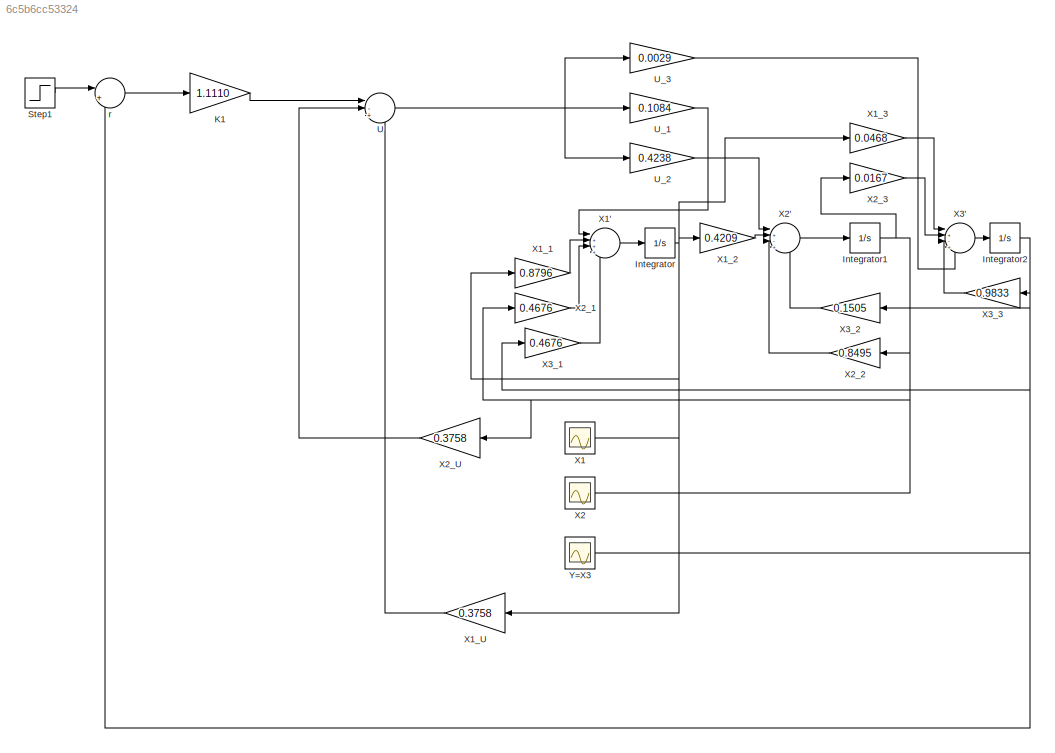
MODEL slx_6c5b6cc53324
KIND model
CONFIG AbsTol = auto
CONFIG EnableMultiTasking = off
CONFIG FixedStep = auto
CONFIG MaxStep = auto
CONFIG MinStep = auto
CONFIG RelTol = 1e-3
CONFIG SampleTimeConstraint = Unconstrained
CONFIG SolverName = VariableStepAuto
CONFIG StartTime = 0.0
CONFIG StopTime = 10.0
BLOCK [Integrator] Integrator
  Ports = [1, 1]
BLOCK [Integrator] Integrator1
  Ports = [1, 1]
BLOCK [Integrator] Integrator2
  Ports = [1, 1]
BLOCK [Gain] K1
  Gain = 1.1110
BLOCK [Step] Step1
  SampleTime = 0
BLOCK [Sum] U
  Inputs = |-+-
  NameLocation = top
  Ports = [3, 1]
BLOCK [Gain] U_1
  Gain = 0.1084
BLOCK [Gain] U_2
  Gain = 0.4238
BLOCK [Gain] U_3
  Gain = 0.0029
BLOCK [Scope] X1
  Floating = off
  NameLocation = top
  NumInputPorts = 1
  Ports = [1]
  ScopeSpecificationString = Simulink.scopes.TimeScopeBlockCfg('CurrentConfiguration', extmgr.ConfigurationSet(extmgr.Configuration('Core','General UI',true),extmgr.Configuration('Core','Source UI',true),extmgr.Configuration('Sources','WiredSimulink',true,'DataLoggingVariableName','ScopeData1'),extmgr.Configuration('Visuals','Time Domain',true,'SerializedDisplays',{struct('MinYLimReal','-161.87277','MaxYLimReal','1135.70337',...<+1387ch>
BLOCK [Sum] X1'
  Inputs = |+++-
  NameLocation = top
  Ports = [4, 1]
BLOCK [Gain] X1_1
  Gain = 0.8796
BLOCK [Gain] X1_2
  Gain = 0.4209
BLOCK [Gain] X1_3
  Gain = 0.0468
BLOCK [Gain] X1_U
  Gain = 0.3758
BLOCK [Scope] X2
  Floating = off
  NameLocation = top
  NumInputPorts = 1
  Ports = [1]
  ScopeSpecificationString = Simulink.scopes.TimeScopeBlockCfg('CurrentConfiguration', extmgr.ConfigurationSet(extmgr.Configuration('Core','General UI',true),extmgr.Configuration('Core','Source UI',true),extmgr.Configuration('Sources','WiredSimulink',true,'DataLoggingVariableName','ScopeData2'),extmgr.Configuration('Visuals','Time Domain',true,'SerializedDisplays',{struct('MinYLimReal','-253.51653','MaxYLimReal','292.78049','...<+1384ch>
BLOCK [Sum] X2'
  Inputs = |+-++
  NameLocation = top
  Ports = [4, 1]
BLOCK [Gain] X2_1
  Gain = 0.4676
BLOCK [Gain] X2_2
  Gain = 0.8495
BLOCK [Gain] X2_3
  Gain = 0.0167
BLOCK [Gain] X2_U
  Gain = 0.3758
BLOCK [Sum] X3'
  Inputs = |+-++
  NameLocation = top
  Ports = [4, 1]
BLOCK [Gain] X3_1
  Gain = 0.4676
BLOCK [Gain] X3_2
  Gain = 0.1505
BLOCK [Gain] X3_3
  Gain = 0.9833
BLOCK [Scope] Y=X3
  Floating = off
  NameLocation = top
  NumInputPorts = 1
  Ports = [1]
  ScopeSpecificationString = Simulink.scopes.TimeScopeBlockCfg('CurrentConfiguration', extmgr.ConfigurationSet(extmgr.Configuration('Core','General UI',true),extmgr.Configuration('Core','Source UI',true),extmgr.Configuration('Sources','WiredSimulink',true),extmgr.Configuration('Visuals','Time Domain',true,'SerializedDisplays',{struct('MinYLimReal','-437.56974','MaxYLimReal','48.61886','YLabelReal','','MinYLimMag',' 0.00000','...<+1343ch>
BLOCK [Sum] r
  Inputs = |+-
  NameLocation = top
  Ports = [2, 1]
NET Integrator1:1 -> X2:1, X2_1:1, X2_2:1, X2_3:1, X2_U:1
NET Integrator2:1 -> X3_1:1, X3_2:1, X3_3:1, Y=X3:1, r:2
NET Integrator:1 -> X1:1, X1_1:1, X1_2:1, X1_3:1, X1_U:1
LINE K1:1 -> U:1
LINE Step1:1 -> r:1
NET U:1 -> U_1:1, U_2:1, U_3:1
LINE U_1:1 -> X1':1
LINE U_2:1 -> X2':1
LINE U_3:1 -> X3':4
LINE X1':1 -> Integrator:1
LINE X1_1:1 -> X1':2
LINE X1_2:1 -> X2':2
LINE X1_3:1 -> X3':1
LINE X1_U:1 -> U:3
LINE X2':1 -> Integrator1:1
LINE X2_1:1 -> X1':3
LINE X2_2:1 -> X2':3
LINE X2_3:1 -> X3':2
LINE X2_U:1 -> U:2
LINE X3':1 -> Integrator2:1
LINE X3_1:1 -> X1':4
LINE X3_2:1 -> X2':4
LINE X3_3:1 -> X3':3
LINE r:1 -> K1:1
note: NET lines group one-source signal fan-out (src -> all destinations, sorted); 1:1 wires keep LINE
